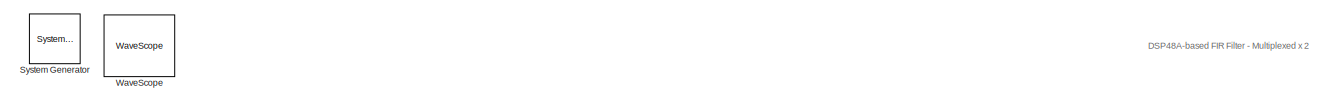
[diagram: root canvas - part 1/4, top left region]
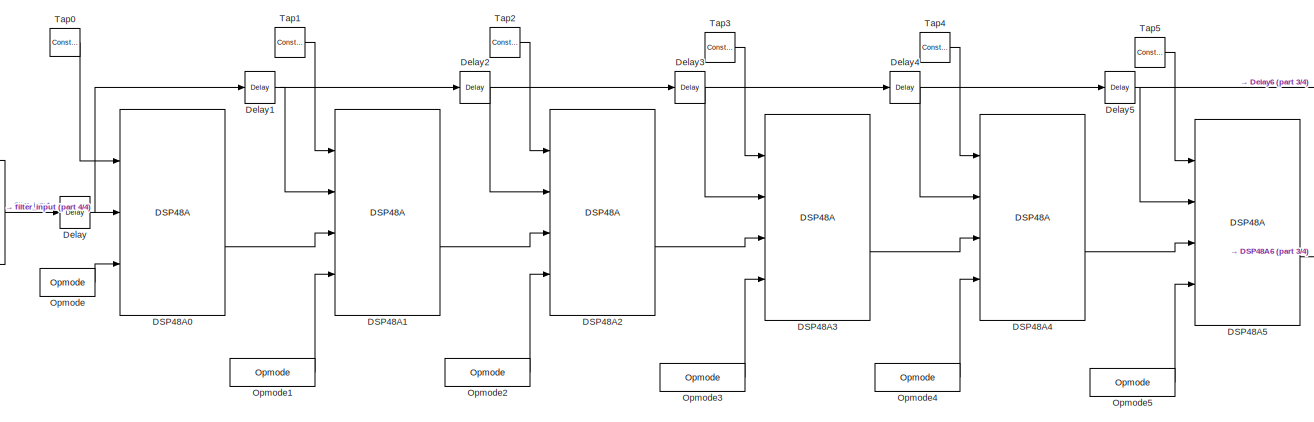
[diagram: root canvas - part 2/4, central region]
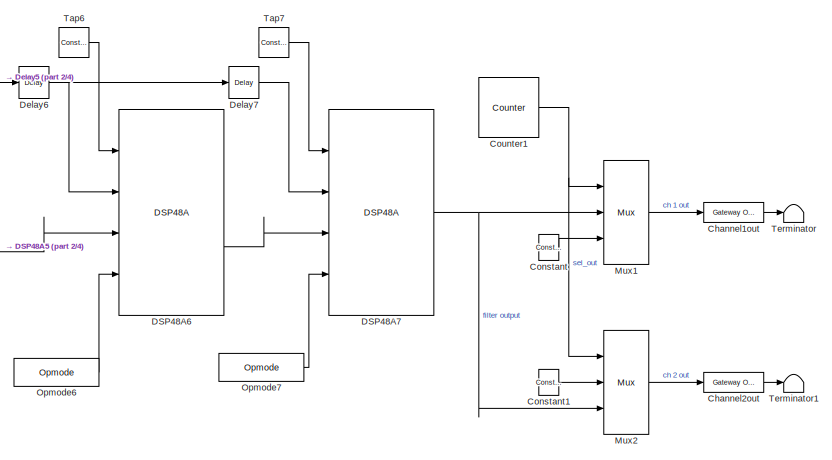
[diagram: root canvas - part 3/4, right side, full height]
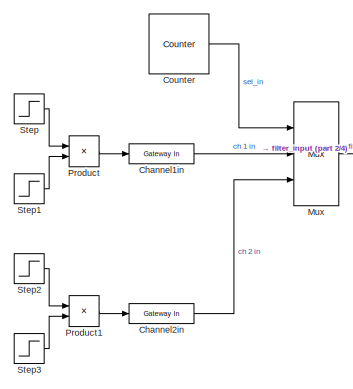
[diagram: root canvas - part 4/4, middle left region]
MODEL mux_2channels_pipelined
KIND model
BLOCK [Reference]  System Generator  REF=xbsIndex_r4/ System Generator
  AttributesFormatString = System\\nGenerator
  FunctionWithSeparateData = off
  Ports = []
  RTWMemSecDataConstants = Inherit from model
  RTWMemSecDataInternal = Inherit from model
  RTWMemSecDataParameters = Inherit from model
  RTWMemSecFuncExecute = Inherit from model
  RTWMemSecFuncInitTerm = Inherit from model
  ShowPortLabels = FromPortIcon
  SourceBlock = xbsIndex_r4/ System Generator
  SourceType = Xilinx System Generator Block
  SystemSampleTime = -1
  Tag = genX
  UserData = DataTag0
  UserDataPersistent = on
  block_type = sysgen
  block_version = 9.2.01
  core_generation = According to Block Masks
  dbl_ovrd = According to Block Masks
  deprecated_control = off
  directory = ./mux2_pipelined
  eval_field = 0
  has_advanced_control = 0
  incr_netlist = off
  infoedit = System Generator
  package = cs484
  part = xc3sd1800a
  run_coregen = off
  sg_icon_stat = 51,50,-1,-1,red,beige,0,07734
  sg_mask_display = fprintf('','COMMENT: begin icon graphics');\npatch([0 51 51 0 ],[0 0 50 50 ],[0.93 0.92 0.86]);\npatch([12 4 16 4 12 25 29 33 47 36 25 17 29 17 25 36 47 33 29 25 12 ],[5 13 25 37 45 45 41 45 45 34 45 37 25 13 5 16 5 5 9 5 5 ],[0.6 0.2 0.25]);\nplot([0 0 51 51 0 ],[0 50 50 0 0 ]);\nfprintf('','COMMENT: end icon graphics');\nfprintf('','COMMENT: begin icon text');\nfprintf('','COMMENT: end icon text...<+5ch>
  sggui_pos = -1,-1,-1,-1
  simulink_period = 1
  speed = -5
  synthesis_tool = XST
  sysclk_period = 3.2
  testbench = off
  trim_vbits = Everywhere in SubSystem
  xilinxfamily = spartan3adsp
BLOCK [Reference] Channel1in  REF=xbsIndex_r4/Gateway In
  LOCs = {}
  Ports = [1, 1]
  SourceBlock = xbsIndex_r4/Gateway In
  SourceType = Xilinx Gateway In Block
  arith_type = Signed  (2's comp)
  bin_pt = 0
  block_type = gatewayin
  block_version = 9.2.01
  dbl_ovrd = off
  has_advanced_control = 0
  infoedit = Gateway in block.  Converts inputs of type Simulink integer, double and fixed point to  Xilinx fixed point type.<P><P>Hardware notes:  In hardware these blocks become top level input ports.
  locs_specified = off
  n_bits = 18
  overflow = Saturate
  period = 1
  quantization = Round  (unbiased: +/- Inf)
  sg_icon_stat = 65,20,1,1,white,yellow,0,4bb76ffd
  sg_mask_display = fprintf('','COMMENT: begin icon graphics');\npatch([0 65 65 0 ],[0 0 20 20 ],[0.95 0.93 0.65]);\npatch([27 24 29 24 27 32 33 34 40 36 32 29 34 29 32 36 40 34 33 32 27 ],[2 5 10 15 18 18 17 18 18 14 18 15 10 5 2 6 2 2 3 2 2 ],[0.98 0.96 0.92]);\nplot([0 0 65 65 0 ],[0 20 20 0 0 ]);\nfprintf('','COMMENT: end icon graphics');\nfprintf('','COMMENT: begin icon text');\ncolor('black');port_label('input'...<+131ch>
  sggui_pos = 20,20,348,406
  timing_constraint = None
  xl_area = [0,0,0,0,0,0,0]
  xl_use_area = off
BLOCK [Reference] Channel1out  REF=xbsIndex_r4/Gateway Out
  LOCs = {}
  Ports = [1, 1]
  SourceBlock = xbsIndex_r4/Gateway Out
  SourceType = Xilinx Gateway Out Block
  block_type = gatewayout
  block_version = 9.2.01
  has_advanced_control = 0
  hdl_port = on
  infoedit = Gateway out block.  Converts Xilinx fixed point inputs into ouputs of type Simulink integer, double, or fixed point.<P><P>Hardware notes:  In hardware these blocks become top level output ports or are discarded, depending on how they are configured.
  locs_specified = off
  sg_icon_stat = 60,20,1,1,white,yellow,0,f0cec300
  sg_mask_display = fprintf('','COMMENT: begin icon graphics');\npatch([0 60 60 0 ],[0 0 20 20 ],[0.95 0.93 0.65]);\npatch([24 21 26 21 24 29 30 31 37 33 29 26 31 26 29 33 37 31 30 29 24 ],[2 5 10 15 18 18 17 18 18 14 18 15 10 5 2 6 2 2 3 2 2 ],[0.98 0.96 0.92]);\nplot([0 0 60 60 0 ],[0 20 20 0 0 ]);\nfprintf('','COMMENT: end icon graphics');\nfprintf('','COMMENT: begin icon text');\ncolor('black');port_label('input'...<+132ch>
  sggui_pos = -1,-1,-1,-1
  timing_constraint = None
  xl_area = [0,0,0,0,0,0,0]
  xl_use_area = off
BLOCK [Reference] Channel2in  REF=xbsIndex_r4/Gateway In
  LOCs = {}
  Ports = [1, 1]
  SourceBlock = xbsIndex_r4/Gateway In
  SourceType = Xilinx Gateway In Block
  arith_type = Signed  (2's comp)
  bin_pt = 0
  block_type = gatewayin
  block_version = 9.2.01
  dbl_ovrd = off
  has_advanced_control = 0
  infoedit = Gateway in block.  Converts inputs of type Simulink integer, double and fixed point to  Xilinx fixed point type.<P><P>Hardware notes:  In hardware these blocks become top level input ports.
  locs_specified = off
  n_bits = 18
  overflow = Saturate
  period = 1
  quantization = Round  (unbiased: +/- Inf)
  sg_icon_stat = 65,20,1,1,white,yellow,0,4bb76ffd
  sg_mask_display = fprintf('','COMMENT: begin icon graphics');\npatch([0 65 65 0 ],[0 0 20 20 ],[0.95 0.93 0.65]);\npatch([27 24 29 24 27 32 33 34 40 36 32 29 34 29 32 36 40 34 33 32 27 ],[2 5 10 15 18 18 17 18 18 14 18 15 10 5 2 6 2 2 3 2 2 ],[0.98 0.96 0.92]);\nplot([0 0 65 65 0 ],[0 20 20 0 0 ]);\nfprintf('','COMMENT: end icon graphics');\nfprintf('','COMMENT: begin icon text');\ncolor('black');port_label('input'...<+131ch>
  sggui_pos = 20,20,348,406
  timing_constraint = None
  xl_area = [0,0,0,0,0,0,0]
  xl_use_area = off
BLOCK [Reference] Channel2out  REF=xbsIndex_r4/Gateway Out
  LOCs = {}
  Ports = [1, 1]
  SourceBlock = xbsIndex_r4/Gateway Out
  SourceType = Xilinx Gateway Out Block
  block_type = gatewayout
  block_version = 9.2.01
  has_advanced_control = 0
  hdl_port = on
  infoedit = Gateway out block.  Converts Xilinx fixed point inputs into ouputs of type Simulink integer, double, or fixed point.<P><P>Hardware notes:  In hardware these blocks become top level output ports or are discarded, depending on how they are configured.
  locs_specified = off
  sg_icon_stat = 60,20,1,1,white,yellow,0,f0cec300
  sg_mask_display = fprintf('','COMMENT: begin icon graphics');\npatch([0 60 60 0 ],[0 0 20 20 ],[0.95 0.93 0.65]);\npatch([24 21 26 21 24 29 30 31 37 33 29 26 31 26 29 33 37 31 30 29 24 ],[2 5 10 15 18 18 17 18 18 14 18 15 10 5 2 6 2 2 3 2 2 ],[0.98 0.96 0.92]);\nplot([0 0 60 60 0 ],[0 20 20 0 0 ]);\nfprintf('','COMMENT: end icon graphics');\nfprintf('','COMMENT: begin icon text');\ncolor('black');port_label('input'...<+132ch>
  sggui_pos = -1,-1,-1,-1
  timing_constraint = None
  xl_area = [0,0,0,0,0,0,0]
  xl_use_area = off
BLOCK [Reference] Constant  REF=xbsIndex_r4/Constant
  Ports = [0, 1]
  SourceBlock = xbsIndex_r4/Constant
  SourceType = Xilinx Constant Block Block
  arith_type = Signed (2's comp)
  bin_pt = 0
  block_type = constant
  block_version = 9.2.01
  carry = CIN
  const = 0
  dbl_ovrd = off
  dsp48_infoedit = The use of this block for DSP48 instructions is deprecated.  Please use the Opmode block.
  equ = P=C
  explicit_period = off
  has_advanced_control = 0
  inp1 = P
  inp2 = PCIN>>17
  n_bits = 18
  opr = +
  opselect = C
  period = 1
  sg_icon_stat = 20,26,0,1,white,blue,0,c7c04a0c
  sg_mask_display = fprintf('','COMMENT: begin icon graphics');\npatch([0 20 20 0 ],[0 0 26 26 ],[0.77 0.82 0.91]);\npatch([4 1 6 1 4 9 10 11 17 13 9 6 11 6 9 13 17 11 10 9 4 ],[5 8 13 18 21 21 20 21 21 17 21 18 13 8 5 9 5 5 6 5 5 ],[0.98 0.96 0.92]);\nplot([0 0 20 20 0 ],[0 26 26 0 0 ]);\nfprintf('','COMMENT: end icon graphics');\nfprintf('','COMMENT: begin icon text');\ncolor('black');port_label('output',1,'0');\nf...<+38ch>
  sggui_pos = 20,20,400,346
BLOCK [Reference] Constant1  REF=xbsIndex_r4/Constant
  Ports = [0, 1]
  SourceBlock = xbsIndex_r4/Constant
  SourceType = Xilinx Constant Block Block
  arith_type = Signed (2's comp)
  bin_pt = 0
  block_type = constant
  block_version = 9.2.01
  carry = CIN
  const = 0
  dbl_ovrd = off
  dsp48_infoedit = The use of this block for DSP48 instructions is deprecated.  Please use the Opmode block.
  equ = P=C
  explicit_period = off
  has_advanced_control = 0
  inp1 = P
  inp2 = PCIN>>17
  n_bits = 18
  opr = +
  opselect = C
  period = 1
  sg_icon_stat = 20,26,0,1,white,blue,0,c7c04a0c
  sg_mask_display = fprintf('','COMMENT: begin icon graphics');\npatch([0 20 20 0 ],[0 0 26 26 ],[0.77 0.82 0.91]);\npatch([4 1 6 1 4 9 10 11 17 13 9 6 11 6 9 13 17 11 10 9 4 ],[5 8 13 18 21 21 20 21 21 17 21 18 13 8 5 9 5 5 6 5 5 ],[0.98 0.96 0.92]);\nplot([0 0 20 20 0 ],[0 26 26 0 0 ]);\nfprintf('','COMMENT: end icon graphics');\nfprintf('','COMMENT: begin icon text');\ncolor('black');port_label('output',1,'0');\nf...<+38ch>
  sggui_pos = 20,20,400,346
BLOCK [Reference] Counter  REF=xbsIndex_r4/Counter
  Ports = [0, 1]
  SourceBlock = xbsIndex_r4/Counter
  SourceType = Xilinx Counter Block
  arith_type = Unsigned
  bin_pt = 0
  block_type = counter
  block_version = 9.2.01
  cnt_by_val = 1
  cnt_to = Inf
  cnt_type = Free Running
  dbl_ovrd = off
  en = off
  explicit_period = on
  has_advanced_control = 0
  infoedit = Hardware notes: Free running counters are the least expensive in hardware.  A count limited counter is implemented by combining a counter with a comparator.
  load_pin = off
  n_bits = 1
  operation = Up
  period = 1
  rst = off
  sg_icon_stat = 60,60,0,1,white,blue,0,115399eb
  sg_mask_display = fprintf('','COMMENT: begin icon graphics');\npatch([0 60 60 0 ],[0 0 60 60 ],[0.77 0.82 0.91]);\npatch([14 4 18 4 14 30 34 38 55 42 29 20 35 20 29 42 55 38 34 30 14 ],[6 16 30 44 54 54 50 54 54 41 54 45 30 15 6 19 6 6 10 6 6 ],[0.98 0.96 0.92]);\nplot([0 0 60 60 0 ],[0 60 60 0 0 ]);\nfprintf('','COMMENT: end icon graphics');\nfprintf('','COMMENT: begin icon text');\ncolor('black');port_label('outp...<+54ch>
  sggui_pos = 20,20,348,619
  start_count = 0
  use_behavioral_HDL = off
  use_rpm = off
  xl_area = [0,0,0,0,0,0,0]
  xl_use_area = off
BLOCK [Reference] Counter1  REF=xbsIndex_r4/Counter
  Ports = [0, 1]
  SourceBlock = xbsIndex_r4/Counter
  SourceType = Xilinx Counter Block
  arith_type = Unsigned
  bin_pt = 0
  block_type = counter
  block_version = 9.2.01
  cnt_by_val = 1
  cnt_to = Inf
  cnt_type = Free Running
  dbl_ovrd = off
  en = off
  explicit_period = on
  has_advanced_control = 0
  infoedit = Hardware notes: Free running counters are the least expensive in hardware.  A count limited counter is implemented by combining a counter with a comparator.
  load_pin = off
  n_bits = 1
  operation = Up
  period = 1
  rst = off
  sg_icon_stat = 60,60,0,1,white,blue,0,115399eb
  sg_mask_display = fprintf('','COMMENT: begin icon graphics');\npatch([0 60 60 0 ],[0 0 60 60 ],[0.77 0.82 0.91]);\npatch([14 4 18 4 14 30 34 38 55 42 29 20 35 20 29 42 55 38 34 30 14 ],[6 16 30 44 54 54 50 54 54 41 54 45 30 15 6 19 6 6 10 6 6 ],[0.98 0.96 0.92]);\nplot([0 0 60 60 0 ],[0 60 60 0 0 ]);\nfprintf('','COMMENT: end icon graphics');\nfprintf('','COMMENT: begin icon text');\ncolor('black');port_label('outp...<+54ch>
  sggui_pos = 20,20,348,619
  start_count = 1
  use_behavioral_HDL = off
  use_rpm = off
  xl_area = [0,0,0,0,0,0,0]
  xl_use_area = off
BLOCK [Reference] DSP48A0  REF=xbsIndex_r4/DSP48A
  Ports = [3, 2]
  SourceBlock = xbsIndex_r4/DSP48A
  SourceType = Xilinx DSP48A Block
  block_type = dsp48a
  block_version = 9.2.01
  carryin_type = Direct from carry in port
  dbl_ovrd = off
  device = 3
  en_a = off
  en_all = off
  en_b = off
  en_c = off
  en_carry_in = off
  en_d = off
  en_mult = off
  en_opmode = off
  en_p = off
  has_advanced_control = 0
  pipeline_c = on
  pipeline_carryin = on
  pipeline_d = off
  pipeline_mult = on
  pipeline_opmode = on
  pipeline_p = on
  rst_a = off
  rst_all = off
  rst_b = off
  rst_c = off
  rst_carry_in = off
  rst_d = off
  rst_mult = off
  rst_opmode = off
  rst_p = off
  sg_icon_stat = 105,206,3,2,white,blue,0,da739006
  sg_mask_display = fprintf('','COMMENT: begin icon graphics');\npatch([0 75 75 0 ],[0 0 136 136 ],[0.77 0.82 0.91]);\npatch([17 5 23 5 17 37 42 47 68 51 35 23 40 23 35 51 68 47 42 37 17 ],[39 51 69 87 99 99 94 99 99 82 98 86 69 52 40 56 39 39 44 39 39 ],[0.98 0.96 0.92]);\nplot([0 0 75 75 0 ],[0 136 136 0 0 ]);\nfprintf('','COMMENT: end icon graphics');\nfprintf('','COMMENT: begin icon text');\ncolor('black');port_l...<+240ch>
  sggui_pos = 261,101,442,483
  use_a0reg = on
  use_a1reg = off
  use_b0reg = on
  use_b1reg = off
  use_bcout = off
  use_carryin = off
  use_carryout = off
  use_creg = off
  use_d = off
  use_op = on
  use_pcin = off
  use_pcout = on
  use_synth_model = off
  xl_area = [0,0,0,0,0,0,0]
  xl_use_area = off
BLOCK [Reference] DSP48A1  REF=xbsIndex_r4/DSP48A
  Ports = [4, 2]
  SourceBlock = xbsIndex_r4/DSP48A
  SourceType = Xilinx DSP48A Block
  block_type = dsp48a
  block_version = 9.2.01
  carryin_type = Direct from carry in port
  dbl_ovrd = off
  device = 3
  en_a = off
  en_all = off
  en_b = off
  en_c = off
  en_carry_in = off
  en_d = off
  en_mult = off
  en_opmode = off
  en_p = off
  has_advanced_control = 0
  pipeline_c = on
  pipeline_carryin = on
  pipeline_d = off
  pipeline_mult = on
  pipeline_opmode = on
  pipeline_p = on
  rst_a = off
  rst_all = off
  rst_b = off
  rst_c = off
  rst_carry_in = off
  rst_d = off
  rst_mult = off
  rst_opmode = off
  rst_p = off
  sg_icon_stat = 105,206,4,2,white,blue,0,0c943c7a
  sg_mask_display = fprintf('','COMMENT: begin icon graphics');\npatch([0 105 105 0 ],[0 0 206 206 ],[0.77 0.82 0.91]);\npatch([24 7 32 7 24 52 60 68 98 75 53 37 62 37 53 75 98 68 60 52 24 ],[62 79 104 129 146 146 138 146 146 123 145 129 104 79 63 85 62 62 70 62 62 ],[0.98 0.96 0.92]);\nplot([0 0 105 105 0 ],[0 206 206 0 0 ]);\nfprintf('','COMMENT: end icon graphics');\nfprintf('','COMMENT: begin icon text');\ncolor(...<+301ch>  <repeated x6 — deduplicated; at blocks: DSP48A1, DSP48A2, DSP48A3, DSP48A4, DSP48A5, DSP48A6>
  sggui_pos = 20,20,442,483
  use_a0reg = on
  use_a1reg = off
  use_b0reg = on
  use_b1reg = off
  use_bcout = off
  use_carryin = off
  use_carryout = off
  use_creg = off
  use_d = off
  use_op = on
  use_pcin = on
  use_pcout = on
  use_synth_model = off
  xl_area = [0,0,0,0,0,0,0]
  xl_use_area = off
BLOCK [Reference] DSP48A2  REF=xbsIndex_r4/DSP48A
  Ports = [4, 2]
  SourceBlock = xbsIndex_r4/DSP48A
  SourceType = Xilinx DSP48A Block
  block_type = dsp48a
  block_version = 9.2.01
  carryin_type = Direct from carry in port
  dbl_ovrd = off
  device = 3
  en_a = off
  en_all = off
  en_b = off
  en_c = off
  en_carry_in = off
  en_d = off
  en_mult = off
  en_opmode = off
  en_p = off
  has_advanced_control = 0
  pipeline_c = on
  pipeline_carryin = on
  pipeline_d = off
  pipeline_mult = on
  pipeline_opmode = on
  pipeline_p = on
  rst_a = off
  rst_all = off
  rst_b = off
  rst_c = off
  rst_carry_in = off
  rst_d = off
  rst_mult = off
  rst_opmode = off
  rst_p = off
  sg_icon_stat = 105,206,4,2,white,blue,0,0c943c7a
  sggui_pos = 20,20,442,483
  use_a0reg = on
  use_a1reg = off
  use_b0reg = on
  use_b1reg = off
  use_bcout = off
  use_carryin = off
  use_carryout = off
  use_creg = off
  use_d = off
  use_op = on
  use_pcin = on
  use_pcout = on
  use_synth_model = off
  xl_area = [0,0,0,0,0,0,0]
  xl_use_area = off
BLOCK [Reference] DSP48A3  REF=xbsIndex_r4/DSP48A
  Ports = [4, 2]
  SourceBlock = xbsIndex_r4/DSP48A
  SourceType = Xilinx DSP48A Block
  block_type = dsp48a
  block_version = 9.2.01
  carryin_type = Direct from carry in port
  dbl_ovrd = off
  device = 3
  en_a = off
  en_all = off
  en_b = off
  en_c = off
  en_carry_in = off
  en_d = off
  en_mult = off
  en_opmode = off
  en_p = off
  has_advanced_control = 0
  pipeline_c = on
  pipeline_carryin = on
  pipeline_d = off
  pipeline_mult = on
  pipeline_opmode = on
  pipeline_p = on
  rst_a = off
  rst_all = off
  rst_b = off
  rst_c = off
  rst_carry_in = off
  rst_d = off
  rst_mult = off
  rst_opmode = off
  rst_p = off
  sg_icon_stat = 105,206,4,2,white,blue,0,0c943c7a
  sggui_pos = 20,20,442,483
  use_a0reg = on
  use_a1reg = off
  use_b0reg = on
  use_b1reg = off
  use_bcout = off
  use_carryin = off
  use_carryout = off
  use_creg = off
  use_d = off
  use_op = on
  use_pcin = on
  use_pcout = on
  use_synth_model = off
  xl_area = [0,0,0,0,0,0,0]
  xl_use_area = off
BLOCK [Reference] DSP48A4  REF=xbsIndex_r4/DSP48A
  Ports = [4, 2]
  SourceBlock = xbsIndex_r4/DSP48A
  SourceType = Xilinx DSP48A Block
  block_type = dsp48a
  block_version = 9.2.01
  carryin_type = Direct from carry in port
  dbl_ovrd = off
  device = 3
  en_a = off
  en_all = off
  en_b = off
  en_c = off
  en_carry_in = off
  en_d = off
  en_mult = off
  en_opmode = off
  en_p = off
  has_advanced_control = 0
  pipeline_c = on
  pipeline_carryin = on
  pipeline_d = off
  pipeline_mult = on
  pipeline_opmode = on
  pipeline_p = on
  rst_a = off
  rst_all = off
  rst_b = off
  rst_c = off
  rst_carry_in = off
  rst_d = off
  rst_mult = off
  rst_opmode = off
  rst_p = off
  sg_icon_stat = 105,206,4,2,white,blue,0,0c943c7a
  sggui_pos = 20,20,442,483
  use_a0reg = on
  use_a1reg = off
  use_b0reg = on
  use_b1reg = off
  use_bcout = off
  use_carryin = off
  use_carryout = off
  use_creg = off
  use_d = off
  use_op = on
  use_pcin = on
  use_pcout = on
  use_synth_model = off
  xl_area = [0,0,0,0,0,0,0]
  xl_use_area = off
BLOCK [Reference] DSP48A5  REF=xbsIndex_r4/DSP48A
  Ports = [4, 2]
  SourceBlock = xbsIndex_r4/DSP48A
  SourceType = Xilinx DSP48A Block
  block_type = dsp48a
  block_version = 9.2.01
  carryin_type = Direct from carry in port
  dbl_ovrd = off
  device = 3
  en_a = off
  en_all = off
  en_b = off
  en_c = off
  en_carry_in = off
  en_d = off
  en_mult = off
  en_opmode = off
  en_p = off
  has_advanced_control = 0
  pipeline_c = on
  pipeline_carryin = on
  pipeline_d = off
  pipeline_mult = on
  pipeline_opmode = on
  pipeline_p = on
  rst_a = off
  rst_all = off
  rst_b = off
  rst_c = off
  rst_carry_in = off
  rst_d = off
  rst_mult = off
  rst_opmode = off
  rst_p = off
  sg_icon_stat = 105,206,4,2,white,blue,0,0c943c7a
  sggui_pos = 20,20,442,483
  use_a0reg = on
  use_a1reg = off
  use_b0reg = on
  use_b1reg = off
  use_bcout = off
  use_carryin = off
  use_carryout = off
  use_creg = off
  use_d = off
  use_op = on
  use_pcin = on
  use_pcout = on
  use_synth_model = off
  xl_area = [0,0,0,0,0,0,0]
  xl_use_area = off
BLOCK [Reference] DSP48A6  REF=xbsIndex_r4/DSP48A
  Ports = [4, 2]
  SourceBlock = xbsIndex_r4/DSP48A
  SourceType = Xilinx DSP48A Block
  block_type = dsp48a
  block_version = 9.2.01
  carryin_type = Direct from carry in port
  dbl_ovrd = off
  device = 3
  en_a = off
  en_all = off
  en_b = off
  en_c = off
  en_carry_in = off
  en_d = off
  en_mult = off
  en_opmode = off
  en_p = off
  has_advanced_control = 0
  pipeline_c = on
  pipeline_carryin = on
  pipeline_d = off
  pipeline_mult = on
  pipeline_opmode = on
  pipeline_p = on
  rst_a = off
  rst_all = off
  rst_b = off
  rst_c = off
  rst_carry_in = off
  rst_d = off
  rst_mult = off
  rst_opmode = off
  rst_p = off
  sg_icon_stat = 105,206,4,2,white,blue,0,0c943c7a
  sggui_pos = 20,20,442,483
  use_a0reg = on
  use_a1reg = off
  use_b0reg = on
  use_b1reg = off
  use_bcout = off
  use_carryin = off
  use_carryout = off
  use_creg = off
  use_d = off
  use_op = on
  use_pcin = on
  use_pcout = on
  use_synth_model = off
  xl_area = [0,0,0,0,0,0,0]
  xl_use_area = off
BLOCK [Reference] DSP48A7  REF=xbsIndex_r4/DSP48A
  Ports = [4, 1]
  SourceBlock = xbsIndex_r4/DSP48A
  SourceType = Xilinx DSP48A Block
  block_type = dsp48a
  block_version = 9.2.01
  carryin_type = Direct from carry in port
  dbl_ovrd = off
  device = 3
  en_a = off
  en_all = off
  en_b = off
  en_c = off
  en_carry_in = off
  en_d = off
  en_mult = off
  en_opmode = off
  en_p = off
  has_advanced_control = 0
  pipeline_c = on
  pipeline_carryin = on
  pipeline_d = off
  pipeline_mult = on
  pipeline_opmode = on
  pipeline_p = on
  rst_a = off
  rst_all = off
  rst_b = off
  rst_c = off
  rst_carry_in = off
  rst_d = off
  rst_mult = off
  rst_opmode = off
  rst_p = off
  sg_icon_stat = 105,206,4,1,white,blue,0,3bfe6a53
  sg_mask_display = fprintf('','COMMENT: begin icon graphics');\npatch([0 105 105 0 ],[0 0 206 206 ],[0.77 0.82 0.91]);\npatch([24 7 32 7 24 52 60 68 98 75 53 37 62 37 53 75 98 68 60 52 24 ],[62 79 104 129 146 146 138 146 146 123 145 129 104 79 63 85 62 62 70 62 62 ],[0.98 0.96 0.92]);\nplot([0 0 105 105 0 ],[0 206 206 0 0 ]);\nfprintf('','COMMENT: end icon graphics');\nfprintf('','COMMENT: begin icon text');\ncolor(...<+253ch>
  sggui_pos = 20,20,442,483
  use_a0reg = on
  use_a1reg = off
  use_b0reg = on
  use_b1reg = off
  use_bcout = off
  use_carryin = off
  use_carryout = off
  use_creg = off
  use_d = off
  use_op = on
  use_pcin = on
  use_pcout = off
  use_synth_model = off
  xl_area = [0,0,0,0,0,0,0]
  xl_use_area = off
BLOCK [Reference] Delay  REF=xbsIndex_r4/Delay
  Ports = [1, 1]
  SourceBlock = xbsIndex_r4/Delay
  SourceType = Xilinx Delay Block
  block_type = delay
  block_version = 9.2.01
  dbl_ovrd = off
  en = off
  has_advanced_control = 0
  infoedit = Hardware notes: A delay line is a chain, each link of which is an SRL16 followed by a flip-flop.
  latency = 1
  reg_retiming = off
  sg_icon_stat = 30,32,1,1,white,blue,0,fc531c0e
  sg_mask_display = fprintf('','COMMENT: begin icon graphics');\npatch([0 30 30 0 ],[0 0 32 32 ],[0.77 0.82 0.91]);\npatch([7 2 9 2 7 15 17 19 27 20 14 9 15 9 14 20 27 19 17 15 7 ],[4 9 16 23 28 28 26 28 28 21 27 22 16 10 5 11 4 4 6 4 4 ],[0.98 0.96 0.92]);\nplot([0 0 30 30 0 ],[0 32 32 0 0 ]);\nfprintf('','COMMENT: end icon graphics');\nfprintf('','COMMENT: begin icon text');\ncolor('black');disp('z^{-1}','texmode',...<+47ch>
  sggui_pos = 20,20,348,255
  xl_area = [0,0,0,0,0,0,0]
  xl_use_area = off
BLOCK [Reference] Delay1  REF=xbsIndex_r4/Delay
  Ports = [1, 1]
  SourceBlock = xbsIndex_r4/Delay
  SourceType = Xilinx Delay Block
  block_type = delay
  block_version = 9.2.01
  dbl_ovrd = off
  en = off
  has_advanced_control = 0
  infoedit = Hardware notes: A delay line is a chain, each link of which is an SRL16 followed by a flip-flop.
  latency = 3
  reg_retiming = off
  sg_icon_stat = 30,32,1,1,white,blue,0,eabd56db
  sg_mask_display = fprintf('','COMMENT: begin icon graphics');\npatch([0 30 30 0 ],[0 0 32 32 ],[0.77 0.82 0.91]);\npatch([7 2 9 2 7 15 17 19 27 20 14 9 15 9 14 20 27 19 17 15 7 ],[4 9 16 23 28 28 26 28 28 21 27 22 16 10 5 11 4 4 6 4 4 ],[0.98 0.96 0.92]);\nplot([0 0 30 30 0 ],[0 32 32 0 0 ]);\nfprintf('','COMMENT: end icon graphics');\nfprintf('','COMMENT: begin icon text');\ncolor('black');disp('z^{-3}','texmode',...<+47ch>  <repeated x7 — deduplicated; at blocks: Delay1, Delay2, Delay3, Delay4, Delay5, Delay6, Delay7>
  sggui_pos = 20,20,348,255
  xl_area = [0,0,0,0,0,0,0]
  xl_use_area = off
BLOCK [Reference] Delay2  REF=xbsIndex_r4/Delay
  Ports = [1, 1]
  SourceBlock = xbsIndex_r4/Delay
  SourceType = Xilinx Delay Block
  block_type = delay
  block_version = 9.2.01
  dbl_ovrd = off
  en = off
  has_advanced_control = 0
  infoedit = Hardware notes: A delay line is a chain, each link of which is an SRL16 followed by a flip-flop.
  latency = 3
  reg_retiming = off
  sg_icon_stat = 30,32,1,1,white,blue,0,eabd56db
  sggui_pos = 20,20,348,255
  xl_area = [0,0,0,0,0,0,0]
  xl_use_area = off
BLOCK [Reference] Delay3  REF=xbsIndex_r4/Delay
  Ports = [1, 1]
  SourceBlock = xbsIndex_r4/Delay
  SourceType = Xilinx Delay Block
  block_type = delay
  block_version = 9.2.01
  dbl_ovrd = off
  en = off
  has_advanced_control = 0
  infoedit = Hardware notes: A delay line is a chain, each link of which is an SRL16 followed by a flip-flop.
  latency = 3
  reg_retiming = off
  sg_icon_stat = 30,32,1,1,white,blue,0,eabd56db
  sggui_pos = 20,20,348,255
  xl_area = [0,0,0,0,0,0,0]
  xl_use_area = off
BLOCK [Reference] Delay4  REF=xbsIndex_r4/Delay
  Ports = [1, 1]
  SourceBlock = xbsIndex_r4/Delay
  SourceType = Xilinx Delay Block
  block_type = delay
  block_version = 9.2.01
  dbl_ovrd = off
  en = off
  has_advanced_control = 0
  infoedit = Hardware notes: A delay line is a chain, each link of which is an SRL16 followed by a flip-flop.
  latency = 3
  reg_retiming = off
  sg_icon_stat = 30,32,1,1,white,blue,0,eabd56db
  sggui_pos = 20,20,348,255
  xl_area = [0,0,0,0,0,0,0]
  xl_use_area = off
BLOCK [Reference] Delay5  REF=xbsIndex_r4/Delay
  Ports = [1, 1]
  SourceBlock = xbsIndex_r4/Delay
  SourceType = Xilinx Delay Block
  block_type = delay
  block_version = 9.2.01
  dbl_ovrd = off
  en = off
  has_advanced_control = 0
  infoedit = Hardware notes: A delay line is a chain, each link of which is an SRL16 followed by a flip-flop.
  latency = 3
  reg_retiming = off
  sg_icon_stat = 30,32,1,1,white,blue,0,eabd56db
  sggui_pos = 20,20,348,255
  xl_area = [0,0,0,0,0,0,0]
  xl_use_area = off
BLOCK [Reference] Delay6  REF=xbsIndex_r4/Delay
  Ports = [1, 1]
  SourceBlock = xbsIndex_r4/Delay
  SourceType = Xilinx Delay Block
  block_type = delay
  block_version = 9.2.01
  dbl_ovrd = off
  en = off
  has_advanced_control = 0
  infoedit = Hardware notes: A delay line is a chain, each link of which is an SRL16 followed by a flip-flop.
  latency = 3
  reg_retiming = off
  sg_icon_stat = 30,32,1,1,white,blue,0,eabd56db
  sggui_pos = 20,20,348,255
  xl_area = [0,0,0,0,0,0,0]
  xl_use_area = off
BLOCK [Reference] Delay7  REF=xbsIndex_r4/Delay
  Ports = [1, 1]
  SourceBlock = xbsIndex_r4/Delay
  SourceType = Xilinx Delay Block
  block_type = delay
  block_version = 9.2.01
  dbl_ovrd = off
  en = off
  has_advanced_control = 0
  infoedit = Hardware notes: A delay line is a chain, each link of which is an SRL16 followed by a flip-flop.
  latency = 3
  reg_retiming = off
  sg_icon_stat = 30,32,1,1,white,blue,0,eabd56db
  sggui_pos = 20,20,348,255
  xl_area = [0,0,0,0,0,0,0]
  xl_use_area = off
BLOCK [Reference] Mux  REF=xbsIndex_r4/Mux
  Ports = [3, 1]
  SourceBlock = xbsIndex_r4/Mux
  SourceType = Xilinx Bus Multiplexer Block
  arith_type = Unsigned
  bin_pt = 14
  block_type = mux
  block_version = 9.2.01
  dbl_ovrd = off
  en = off
  has_advanced_control = 0
  inputs = 2
  latency = 0
  n_bits = 16
  overflow = Wrap
  precision = Full
  quantization = Truncate
  sg_icon_stat = 45,104,3,1,white,blue,3,613f58e1
  sg_mask_display = fprintf('','COMMENT: begin icon graphics');\npatch([0 45 45 0 ],[0 14.8571 89.1429 104 ],[0.77 0.82 0.91]);\npatch([10 3 14 3 10 22 25 28 41 31 21 14 25 14 21 31 41 28 25 22 10 ],[34 41 52 63 70 70 67 70 70 60 70 63 52 41 34 44 34 34 37 34 34 ],[0.98 0.96 0.92]);\nplot([0 45 45 0 0 ],[0 14.8571 89.1429 104 0 ]);\nfprintf('','COMMENT: end icon graphics');\nfprintf('','COMMENT: begin icon text');\nc...<+218ch>  <repeated x3 — deduplicated; at blocks: Mux, Mux1, Mux2>
  sggui_pos = -1,-1,-1,-1
  xl_area = [0,0,0,0,0,0,0]
  xl_use_area = off
BLOCK [Reference] Mux1  REF=xbsIndex_r4/Mux
  Ports = [3, 1]
  SourceBlock = xbsIndex_r4/Mux
  SourceType = Xilinx Bus Multiplexer Block
  arith_type = Unsigned
  bin_pt = 14
  block_type = mux
  block_version = 9.2.01
  dbl_ovrd = off
  en = off
  has_advanced_control = 0
  inputs = 2
  latency = 0
  n_bits = 16
  overflow = Wrap
  precision = Full
  quantization = Truncate
  sg_icon_stat = 45,104,3,1,white,blue,3,613f58e1
  sggui_pos = -1,-1,-1,-1
  xl_area = [0,0,0,0,0,0,0]
  xl_use_area = off
BLOCK [Reference] Mux2  REF=xbsIndex_r4/Mux
  Ports = [3, 1]
  SourceBlock = xbsIndex_r4/Mux
  SourceType = Xilinx Bus Multiplexer Block
  arith_type = Unsigned
  bin_pt = 14
  block_type = mux
  block_version = 9.2.01
  dbl_ovrd = off
  en = off
  has_advanced_control = 0
  inputs = 2
  latency = 0
  n_bits = 16
  overflow = Wrap
  precision = Full
  quantization = Truncate
  sg_icon_stat = 45,104,3,1,white,blue,3,613f58e1
  sggui_pos = -1,-1,-1,-1
  xl_area = [0,0,0,0,0,0,0]
  xl_use_area = off
BLOCK [Reference] Opmode  REF=xbsIndex_r4/Opmode
  Ports = [0, 1]
  SourceBlock = xbsIndex_r4/Opmode
  SourceType = Xilinx Instruction Block Block
  block_type = opmode
  block_version = 9.2.01
  carry = 0
  dbl_ovrd = off
  device = DSP48A
  equ = P=(A*B)
  has_advanced_control = 0
  logicinstr = X + Z
  operand = +
  operation = A * B
  sg_icon_stat = 55,28,0,1,white,blue,0,ff2a11c4
  sg_list_contents = {'table'=>{'carry'=>'popup(0|1|CIN)','operation'=>'popup(C + A*B|PCIN + A*B|P + A*B|A * B|C + D:A:B|C - D:A:B|C|Custom)','userSelections'=>{'carry'=>'0','operation'=>'A * B','z_mux'=>'C'},'z_mux'=>'popup(0|PCIN|P|C)'}}
  sg_mask_display = fprintf('','COMMENT: begin icon graphics');\npatch([0 55 55 0 ],[0 0 28 28 ],[0.77 0.82 0.91]);\npatch([20 15 22 15 20 27 29 31 39 33 27 23 31 23 27 33 39 31 29 27 20 ],[3 8 15 22 27 27 25 27 27 21 27 23 15 7 3 9 3 3 5 3 3 ],[0.98 0.96 0.92]);\nplot([0 0 55 55 0 ],[0 28 28 0 0 ]);\nfprintf('','COMMENT: end icon graphics');\nfprintf('','COMMENT: begin icon text');\ncolor('black');port_label('output...<+56ch>
  sggui_pos = 617,177,336,450
  x_mux = A*(D+B)
  xy_mux = P
  z_mux = C
BLOCK [Reference] Opmode1  REF=xbsIndex_r4/Opmode
  Ports = [0, 1]
  SourceBlock = xbsIndex_r4/Opmode
  SourceType = Xilinx Instruction Block Block
  block_type = opmode
  block_version = 9.2.01
  carry = 0
  dbl_ovrd = off
  device = DSP48A
  equ = P=PCIN+(A*B)
  has_advanced_control = 0
  logicinstr = X + Z
  operand = +
  operation = PCIN + A*B
  sg_icon_stat = 85,28,0,1,white,blue,0,8437ff34
  sg_list_contents = {'table'=>{'carry'=>'popup(0|1|CIN)','operation'=>'popup(C + A*B|PCIN + A*B|P + A*B|A * B|C + D:A:B|C - D:A:B|C|Custom)','userSelections'=>{'carry'=>'0','operation'=>'PCIN + A*B','z_mux'=>'P'},'z_mux'=>'popup(0|PCIN|P|C)'}}  <repeated x7 — deduplicated; at blocks: Opmode1, Opmode2, Opmode3, Opmode4, Opmode5, Opmode6, Opmode7>
  sg_mask_display = fprintf('','COMMENT: begin icon graphics');\npatch([0 85 85 0 ],[0 0 28 28 ],[0.77 0.82 0.91]);\npatch([35 30 37 30 35 42 44 46 54 48 42 38 46 38 42 48 54 46 44 42 35 ],[3 8 15 22 27 27 25 27 27 21 27 23 15 7 3 9 3 3 5 3 3 ],[0.98 0.96 0.92]);\nplot([0 0 85 85 0 ],[0 28 28 0 0 ]);\nfprintf('','COMMENT: end icon graphics');\nfprintf('','COMMENT: begin icon text');\ncolor('black');port_label('output...<+61ch>  <repeated x7 — deduplicated; at blocks: Opmode1, Opmode2, Opmode3, Opmode4, Opmode5, Opmode6, Opmode7>
  sggui_pos = 20,20,336,450
  x_mux = A*(D+B)
  xy_mux = P
  z_mux = P
BLOCK [Reference] Opmode2  REF=xbsIndex_r4/Opmode
  Ports = [0, 1]
  SourceBlock = xbsIndex_r4/Opmode
  SourceType = Xilinx Instruction Block Block
  block_type = opmode
  block_version = 9.2.01
  carry = 0
  dbl_ovrd = off
  device = DSP48A
  equ = P=PCIN+(A*B)
  has_advanced_control = 0
  logicinstr = X + Z
  operand = +
  operation = PCIN + A*B
  sg_icon_stat = 85,28,0,1,white,blue,0,8437ff34
  sggui_pos = 20,20,336,450
  x_mux = A*(D+B)
  xy_mux = P
  z_mux = P
BLOCK [Reference] Opmode3  REF=xbsIndex_r4/Opmode
  Ports = [0, 1]
  SourceBlock = xbsIndex_r4/Opmode
  SourceType = Xilinx Instruction Block Block
  block_type = opmode
  block_version = 9.2.01
  carry = 0
  dbl_ovrd = off
  device = DSP48A
  equ = P=PCIN+(A*B)
  has_advanced_control = 0
  logicinstr = X + Z
  operand = +
  operation = PCIN + A*B
  sg_icon_stat = 85,28,0,1,white,blue,0,8437ff34
  sggui_pos = 20,20,336,450
  x_mux = A*(D+B)
  xy_mux = P
  z_mux = P
BLOCK [Reference] Opmode4  REF=xbsIndex_r4/Opmode
  Ports = [0, 1]
  SourceBlock = xbsIndex_r4/Opmode
  SourceType = Xilinx Instruction Block Block
  block_type = opmode
  block_version = 9.2.01
  carry = 0
  dbl_ovrd = off
  device = DSP48A
  equ = P=PCIN+(A*B)
  has_advanced_control = 0
  logicinstr = X + Z
  operand = +
  operation = PCIN + A*B
  sg_icon_stat = 85,28,0,1,white,blue,0,8437ff34
  sggui_pos = 20,20,336,450
  x_mux = A*(D+B)
  xy_mux = P
  z_mux = P
BLOCK [Reference] Opmode5  REF=xbsIndex_r4/Opmode
  Ports = [0, 1]
  SourceBlock = xbsIndex_r4/Opmode
  SourceType = Xilinx Instruction Block Block
  block_type = opmode
  block_version = 9.2.01
  carry = 0
  dbl_ovrd = off
  device = DSP48A
  equ = P=PCIN+(A*B)
  has_advanced_control = 0
  logicinstr = X + Z
  operand = +
  operation = PCIN + A*B
  sg_icon_stat = 85,28,0,1,white,blue,0,8437ff34
  sggui_pos = 20,20,336,450
  x_mux = A*(D+B)
  xy_mux = P
  z_mux = P
BLOCK [Reference] Opmode6  REF=xbsIndex_r4/Opmode
  Ports = [0, 1]
  SourceBlock = xbsIndex_r4/Opmode
  SourceType = Xilinx Instruction Block Block
  block_type = opmode
  block_version = 9.2.01
  carry = 0
  dbl_ovrd = off
  device = DSP48A
  equ = P=PCIN+(A*B)
  has_advanced_control = 0
  logicinstr = X + Z
  operand = +
  operation = PCIN + A*B
  sg_icon_stat = 85,28,0,1,white,blue,0,8437ff34
  sggui_pos = 20,20,336,450
  x_mux = A*(D+B)
  xy_mux = P
  z_mux = P
BLOCK [Reference] Opmode7  REF=xbsIndex_r4/Opmode
  Ports = [0, 1]
  SourceBlock = xbsIndex_r4/Opmode
  SourceType = Xilinx Instruction Block Block
  block_type = opmode
  block_version = 9.2.01
  carry = 0
  dbl_ovrd = off
  device = DSP48A
  equ = P=PCIN+(A*B)
  has_advanced_control = 0
  logicinstr = X + Z
  operand = +
  operation = PCIN + A*B
  sg_icon_stat = 85,28,0,1,white,blue,0,8437ff34
  sggui_pos = 20,20,336,450
  x_mux = A*(D+B)
  xy_mux = P
  z_mux = P
BLOCK [Product] Product
  CollapseMode = All dimensions
  InputSameDT = off
  OutDataTypeMode = Inherit via internal rule
  Ports = [2, 1]
  SaturateOnIntegerOverflow = off
BLOCK [Product] Product1
  CollapseMode = All dimensions
  InputSameDT = off
  OutDataTypeMode = Inherit via internal rule
  Ports = [2, 1]
  SaturateOnIntegerOverflow = off
BLOCK [Step] Step
  SampleTime = 1
  Time = 4
BLOCK [Step] Step1
  After = 0
  Before = 1
  SampleTime = 1
  Time = 5
BLOCK [Step] Step2
  SampleTime = 1
  Time = 3
BLOCK [Step] Step3
  After = 0
  Before = -1
  SampleTime = 1
  Time = 4
BLOCK [Reference] Tap0  REF=xbsIndex_r4/Constant
  Ports = [0, 1]
  SourceBlock = xbsIndex_r4/Constant
  SourceType = Xilinx Constant Block Block
  arith_type = Signed (2's comp)
  bin_pt = 0
  block_type = constant
  block_version = 9.2.01
  carry = CIN
  const = 14
  dbl_ovrd = off
  dsp48_infoedit = The use of this block for DSP48 instructions is deprecated.  Please use the Opmode block.
  equ = P=C
  explicit_period = off
  has_advanced_control = 0
  inp1 = P
  inp2 = PCIN>>17
  n_bits = 18
  opr = +
  opselect = C
  period = 1
  sg_icon_stat = 30,28,0,1,white,blue,0,69530ded
  sg_mask_display = fprintf('','COMMENT: begin icon graphics');\npatch([0 55 55 0 ],[0 0 26 26 ],[0.77 0.82 0.91]);\npatch([20 16 22 16 20 27 29 31 38 32 26 22 28 22 26 32 38 31 29 27 20 ],[3 7 13 19 23 23 21 23 23 17 23 19 13 7 3 9 3 3 5 3 3 ],[0.98 0.96 0.92]);\nplot([0 0 55 55 0 ],[0 26 26 0 0 ]);\nfprintf('','COMMENT: end icon graphics');\nfprintf('','COMMENT: begin icon text');\ncolor('black');port_label('output...<+51ch>
  sggui_pos = 20,20,400,346
BLOCK [Reference] Tap1  REF=xbsIndex_r4/Constant
  Ports = [0, 1]
  SourceBlock = xbsIndex_r4/Constant
  SourceType = Xilinx Constant Block Block
  arith_type = Signed (2's comp)
  bin_pt = 0
  block_type = constant
  block_version = 9.2.01
  carry = CIN
  const = 64
  dbl_ovrd = off
  dsp48_infoedit = The use of this block for DSP48 instructions is deprecated.  Please use the Opmode block.
  equ = P=C
  explicit_period = off
  has_advanced_control = 0
  inp1 = P
  inp2 = PCIN>>17
  n_bits = 18
  opr = +
  opselect = C
  period = 1
  sg_icon_stat = 30,30,0,1,white,blue,0,a048bc31
  sg_mask_display = fprintf('','COMMENT: begin icon graphics');\npatch([0 30 30 0 ],[0 0 30 30 ],[0.77 0.82 0.91]);\npatch([7 2 9 2 7 15 17 19 27 20 14 9 15 9 14 20 27 19 17 15 7 ],[3 8 15 22 27 27 25 27 27 20 26 21 15 9 4 10 3 3 5 3 3 ],[0.98 0.96 0.92]);\nplot([0 0 30 30 0 ],[0 30 30 0 0 ]);\nfprintf('','COMMENT: end icon graphics');\nfprintf('','COMMENT: begin icon text');\ncolor('black');port_label('output',1,'64...<+44ch>
  sggui_pos = 20,20,400,346
BLOCK [Reference] Tap2  REF=xbsIndex_r4/Constant
  Ports = [0, 1]
  SourceBlock = xbsIndex_r4/Constant
  SourceType = Xilinx Constant Block Block
  arith_type = Signed (2's comp)
  bin_pt = 0
  block_type = constant
  block_version = 9.2.01
  carry = CIN
  const = -30
  dbl_ovrd = off
  dsp48_infoedit = The use of this block for DSP48 instructions is deprecated.  Please use the Opmode block.
  equ = P=C
  explicit_period = off
  has_advanced_control = 0
  inp1 = P
  inp2 = PCIN>>17
  n_bits = 18
  opr = +
  opselect = C
  period = 1
  sg_icon_stat = 30,30,0,1,white,blue,0,2a9587ae
  sg_mask_display = fprintf('','COMMENT: begin icon graphics');\npatch([0 30 30 0 ],[0 0 30 30 ],[0.77 0.82 0.91]);\npatch([7 2 9 2 7 15 17 19 27 20 14 9 15 9 14 20 27 19 17 15 7 ],[3 8 15 22 27 27 25 27 27 20 26 21 15 9 4 10 3 3 5 3 3 ],[0.98 0.96 0.92]);\nplot([0 0 30 30 0 ],[0 30 30 0 0 ]);\nfprintf('','COMMENT: end icon graphics');\nfprintf('','COMMENT: begin icon text');\ncolor('black');port_label('output',1,'-3...<+45ch>
  sggui_pos = 20,20,400,346
BLOCK [Reference] Tap3  REF=xbsIndex_r4/Constant
  Ports = [0, 1]
  SourceBlock = xbsIndex_r4/Constant
  SourceType = Xilinx Constant Block Block
  arith_type = Signed (2's comp)
  bin_pt = 0
  block_type = constant
  block_version = 9.2.01
  carry = CIN
  const = 153
  dbl_ovrd = off
  dsp48_infoedit = The use of this block for DSP48 instructions is deprecated.  Please use the Opmode block.
  equ = P=C
  explicit_period = off
  has_advanced_control = 0
  inp1 = P
  inp2 = PCIN>>17
  n_bits = 18
  opr = +
  opselect = C
  period = 1
  sg_icon_stat = 30,30,0,1,white,blue,0,4582da4e
  sg_mask_display = fprintf('','COMMENT: begin icon graphics');\npatch([0 30 30 0 ],[0 0 30 30 ],[0.77 0.82 0.91]);\npatch([7 2 9 2 7 15 17 19 27 20 14 9 15 9 14 20 27 19 17 15 7 ],[3 8 15 22 27 27 25 27 27 20 26 21 15 9 4 10 3 3 5 3 3 ],[0.98 0.96 0.92]);\nplot([0 0 30 30 0 ],[0 30 30 0 0 ]);\nfprintf('','COMMENT: end icon graphics');\nfprintf('','COMMENT: begin icon text');\ncolor('black');port_label('output',1,'15...<+45ch>
  sggui_pos = 20,20,400,346
BLOCK [Reference] Tap4  REF=xbsIndex_r4/Constant
  Ports = [0, 1]
  SourceBlock = xbsIndex_r4/Constant
  SourceType = Xilinx Constant Block Block
  arith_type = Signed (2's comp)
  bin_pt = 0
  block_type = constant
  block_version = 9.2.01
  carry = CIN
  const = -99
  dbl_ovrd = off
  dsp48_infoedit = The use of this block for DSP48 instructions is deprecated.  Please use the Opmode block.
  equ = P=C
  explicit_period = off
  has_advanced_control = 0
  inp1 = P
  inp2 = PCIN>>17
  n_bits = 18
  opr = +
  opselect = C
  period = 1
  sg_icon_stat = 30,30,0,1,white,blue,0,787051cc
  sg_mask_display = fprintf('','COMMENT: begin icon graphics');\npatch([0 30 30 0 ],[0 0 30 30 ],[0.77 0.82 0.91]);\npatch([7 2 9 2 7 15 17 19 27 20 14 9 15 9 14 20 27 19 17 15 7 ],[3 8 15 22 27 27 25 27 27 20 26 21 15 9 4 10 3 3 5 3 3 ],[0.98 0.96 0.92]);\nplot([0 0 30 30 0 ],[0 30 30 0 0 ]);\nfprintf('','COMMENT: end icon graphics');\nfprintf('','COMMENT: begin icon text');\ncolor('black');port_label('output',1,'-9...<+45ch>
  sggui_pos = 20,20,400,346
BLOCK [Reference] Tap5  REF=xbsIndex_r4/Constant
  Ports = [0, 1]
  SourceBlock = xbsIndex_r4/Constant
  SourceType = Xilinx Constant Block Block
  arith_type = Signed (2's comp)
  bin_pt = 0
  block_type = constant
  block_version = 9.2.01
  carry = CIN
  const = 1
  dbl_ovrd = off
  dsp48_infoedit = The use of this block for DSP48 instructions is deprecated.  Please use the Opmode block.
  equ = P=C
  explicit_period = off
  has_advanced_control = 0
  inp1 = P
  inp2 = PCIN>>17
  n_bits = 18
  opr = +
  opselect = C
  period = 1
  sg_icon_stat = 30,30,0,1,white,blue,0,85613821
  sg_mask_display = fprintf('','COMMENT: begin icon graphics');\npatch([0 30 30 0 ],[0 0 30 30 ],[0.77 0.82 0.91]);\npatch([7 2 9 2 7 15 17 19 27 20 14 9 15 9 14 20 27 19 17 15 7 ],[3 8 15 22 27 27 25 27 27 20 26 21 15 9 4 10 3 3 5 3 3 ],[0.98 0.96 0.92]);\nplot([0 0 30 30 0 ],[0 30 30 0 0 ]);\nfprintf('','COMMENT: end icon graphics');\nfprintf('','COMMENT: begin icon text');\ncolor('black');port_label('output',1,'1'...<+43ch>
  sggui_pos = 20,20,400,346
BLOCK [Reference] Tap6  REF=xbsIndex_r4/Constant
  Ports = [0, 1]
  SourceBlock = xbsIndex_r4/Constant
  SourceType = Xilinx Constant Block Block
  arith_type = Signed (2's comp)
  bin_pt = 0
  block_type = constant
  block_version = 9.2.01
  carry = CIN
  const = -17
  dbl_ovrd = off
  dsp48_infoedit = The use of this block for DSP48 instructions is deprecated.  Please use the Opmode block.
  equ = P=C
  explicit_period = off
  has_advanced_control = 0
  inp1 = P
  inp2 = PCIN>>17
  n_bits = 18
  opr = +
  opselect = C
  period = 1
  sg_icon_stat = 30,30,0,1,white,blue,0,c54e444a
  sg_mask_display = fprintf('','COMMENT: begin icon graphics');\npatch([0 30 30 0 ],[0 0 30 30 ],[0.77 0.82 0.91]);\npatch([7 2 9 2 7 15 17 19 27 20 14 9 15 9 14 20 27 19 17 15 7 ],[3 8 15 22 27 27 25 27 27 20 26 21 15 9 4 10 3 3 5 3 3 ],[0.98 0.96 0.92]);\nplot([0 0 30 30 0 ],[0 30 30 0 0 ]);\nfprintf('','COMMENT: end icon graphics');\nfprintf('','COMMENT: begin icon text');\ncolor('black');port_label('output',1,'-1...<+45ch>
  sggui_pos = 20,20,400,346
BLOCK [Reference] Tap7  REF=xbsIndex_r4/Constant
  Ports = [0, 1]
  SourceBlock = xbsIndex_r4/Constant
  SourceType = Xilinx Constant Block Block
  arith_type = Signed (2's comp)
  bin_pt = 0
  block_type = constant
  block_version = 9.2.01
  carry = CIN
  const = -25
  dbl_ovrd = off
  dsp48_infoedit = The use of this block for DSP48 instructions is deprecated.  Please use the Opmode block.
  equ = P=C
  explicit_period = off
  has_advanced_control = 0
  inp1 = P
  inp2 = PCIN>>17
  n_bits = 18
  opr = +
  opselect = C
  period = 1
  sg_icon_stat = 30,30,0,1,white,blue,0,c78d5f26
  sg_mask_display = fprintf('','COMMENT: begin icon graphics');\npatch([0 30 30 0 ],[0 0 30 30 ],[0.77 0.82 0.91]);\npatch([7 2 9 2 7 15 17 19 27 20 14 9 15 9 14 20 27 19 17 15 7 ],[3 8 15 22 27 27 25 27 27 20 26 21 15 9 4 10 3 3 5 3 3 ],[0.98 0.96 0.92]);\nplot([0 0 30 30 0 ],[0 30 30 0 0 ]);\nfprintf('','COMMENT: end icon graphics');\nfprintf('','COMMENT: begin icon text');\ncolor('black');port_label('output',1,'-2...<+45ch>
  sggui_pos = 20,20,400,346
BLOCK [Terminator] Terminator
BLOCK [Terminator] Terminator1
BLOCK [Reference] WaveScope  REF=xbsIndex_r4/WaveScope
  Ports = []
  SourceBlock = xbsIndex_r4/WaveScope
  SourceType = WaveScope Block
  UserData = DataTag1
  UserDataPersistent = on
  block_type = wavescope
  block_version = 9.2.01
  has_advanced_control = 0
  infoedit = WaveScope
  sg_icon_stat = 0,0,-1,-1,white,blue,0,07734
  sggui_pos = -1,-1,-1,-1
ANNOTATION (root): DSP48A-based FIR Filter - Multiplexed x 2
LINE Channel1in:1 -> Mux:2
LINE Channel1out:1 -> Terminator:1
LINE Channel2in:1 -> Mux:3
LINE Channel2out:1 -> Terminator1:1
LINE Constant1:1 -> Mux2:2
LINE Constant:1 -> Mux1:3
NET Counter1:1 -> Mux1:1, Mux2:1
LINE Counter:1 -> Mux:1
LINE DSP48A0:2 -> DSP48A1:3
LINE DSP48A1:2 -> DSP48A2:3
LINE DSP48A2:2 -> DSP48A3:3
LINE DSP48A3:2 -> DSP48A4:3
LINE DSP48A4:2 -> DSP48A5:3
LINE DSP48A5:2 -> DSP48A6:3
LINE DSP48A6:2 -> DSP48A7:3
NET DSP48A7:1 -> Mux1:2, Mux2:3
NET Delay1:1 -> DSP48A1:2, Delay2:1
NET Delay2:1 -> DSP48A2:2, Delay3:1
NET Delay3:1 -> DSP48A3:2, Delay4:1
NET Delay4:1 -> DSP48A4:2, Delay5:1
NET Delay5:1 -> DSP48A5:2, Delay6:1
NET Delay6:1 -> DSP48A6:2, Delay7:1
LINE Delay7:1 -> DSP48A7:2
NET Delay:1 -> DSP48A0:2, Delay1:1
LINE Mux1:1 -> Channel1out:1
LINE Mux2:1 -> Channel2out:1
LINE Mux:1 -> Delay:1
LINE Opmode1:1 -> DSP48A1:4
LINE Opmode2:1 -> DSP48A2:4
LINE Opmode3:1 -> DSP48A3:4
LINE Opmode4:1 -> DSP48A4:4
LINE Opmode5:1 -> DSP48A5:4
LINE Opmode6:1 -> DSP48A6:4
LINE Opmode7:1 -> DSP48A7:4
LINE Opmode:1 -> DSP48A0:3
LINE Product1:1 -> Channel2in:1
LINE Product:1 -> Channel1in:1
LINE Step1:1 -> Product:2
LINE Step2:1 -> Product1:1
LINE Step3:1 -> Product1:2
LINE Step:1 -> Product:1
LINE Tap0:1 -> DSP48A0:1
LINE Tap1:1 -> DSP48A1:1
LINE Tap2:1 -> DSP48A2:1
LINE Tap3:1 -> DSP48A3:1
LINE Tap4:1 -> DSP48A4:1
LINE Tap5:1 -> DSP48A5:1
LINE Tap6:1 -> DSP48A6:1
LINE Tap7:1 -> DSP48A7:1
note: NET lines group one-source signal fan-out (src -> all destinations, sorted); 1:1 wires keep LINE
